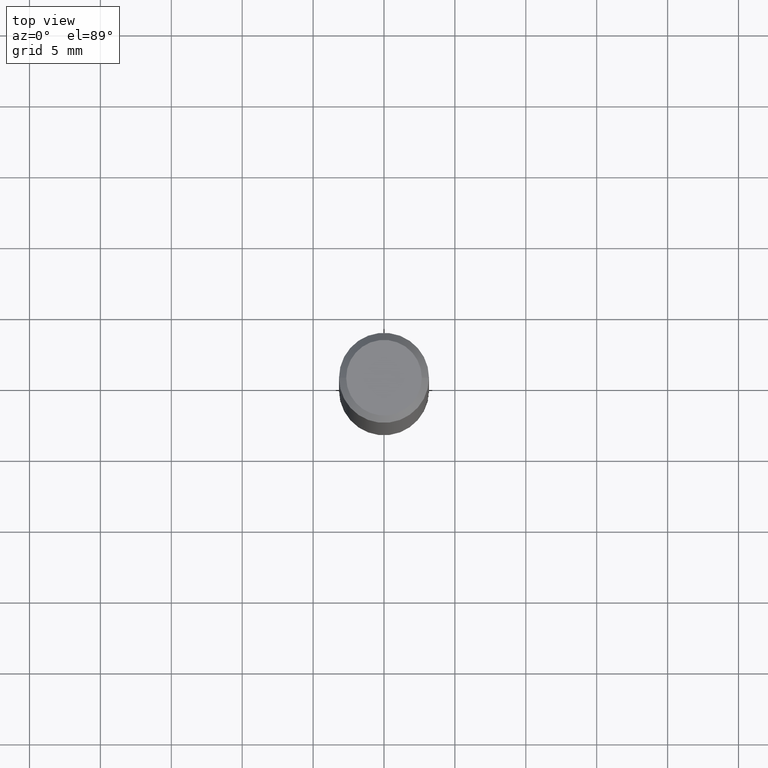
[diagram: clean part render]
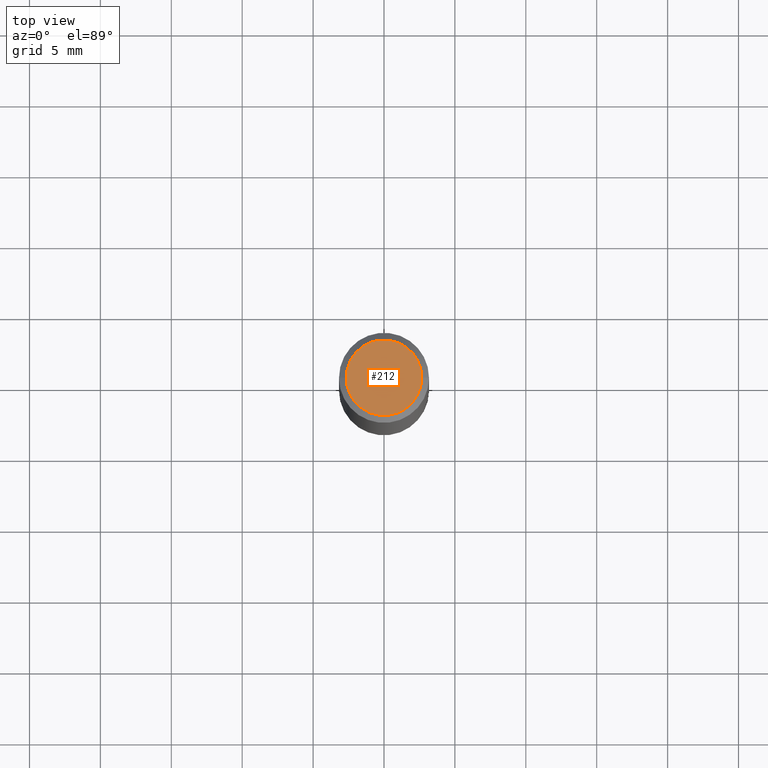
[diagram: same view with one face highlighted and labeled with its STEP entity id]
A machine part, top view. The second image highlights one B-rep face of the part: STEP entity #212.
In plain terms, the highlighted planar face has unit normal (0, -0, -1).
Its self-contained STEP definition (entity closure, byte-faithful):
#3 = FACE_OUTER_BOUND ( 'NONE', #270, .T. ) ;
#10 = EDGE_CURVE ( 'NONE', #138, #364, #342, .T. ) ;
#30 = CIRCLE ( 'NONE', #354, 0.1049999999999997741 ) ;
#55 = CARTESIAN_POINT ( 'NONE',  ( 0.1049999999999997741, -8.238720831321559881E-16, 5.444276250344138855E-30 ) ) ;
#70 = DIRECTION ( 'NONE',  ( -2.445468806185136597E-29, 3.491481338843145583E-15, 1.000000000000000000 ) ) ;
#79 = DIRECTION ( 'NONE',  ( -2.445468806185136597E-29, 3.491481338843145583E-15, 1.000000000000000000 ) ) ;
#96 = DIRECTION ( 'NONE',  ( 1.000000000000000000, -6.982962677686265922E-15, 4.876176775795935232E-29 ) ) ;
#110 = PLANE ( 'NONE',  #305 ) ;
#138 = VERTEX_POINT ( 'NONE', #241 ) ;
#161 = DIRECTION ( 'NONE',  ( 2.438088387897960049E-29, -3.491481338843145188E-15, -1.000000000000000000 ) ) ;
#181 = EDGE_CURVE ( 'NONE', #364, #138, #30, .T. ) ;
#191 = CARTESIAN_POINT ( 'NONE',  ( 7.332110811570563480E-16, 0.1049999999999997741, -3.666055405785295052E-16 ) ) ;
#212 = ADVANCED_FACE ( 'NONE', ( #3 ), #110, .F. ) ;
#223 = DIRECTION ( 'NONE',  ( -1.000000000000000000, 6.982962677686265922E-15, -4.876176775795935793E-29 ) ) ;
#241 = CARTESIAN_POINT ( 'NONE',  ( -0.1049999999999997741, 7.681258945454876027E-16, -5.249639473182155366E-30 ) ) ;
#248 = ORIENTED_EDGE ( 'NONE', *, *, #10, .T. ) ;
#253 = CARTESIAN_POINT ( 'NONE',  ( 0.000000000000000000, 0.000000000000000000, 0.000000000000000000 ) ) ;
#257 = ORIENTED_EDGE ( 'NONE', *, *, #181, .T. ) ;
#270 = EDGE_LOOP ( 'NONE', ( #248, #257 ) ) ;
#286 = AXIS2_PLACEMENT_3D ( 'NONE', #310, #70, #96 ) ;
#305 = AXIS2_PLACEMENT_3D ( 'NONE', #191, #161, #223 ) ;
#310 = CARTESIAN_POINT ( 'NONE',  ( 0.000000000000000000, 0.000000000000000000, 0.000000000000000000 ) ) ;
#342 = CIRCLE ( 'NONE', #286, 0.1049999999999997741 ) ;
#353 = DIRECTION ( 'NONE',  ( 1.000000000000000000, -6.982962677686265922E-15, 4.876176775795935232E-29 ) ) ;
#354 = AXIS2_PLACEMENT_3D ( 'NONE', #253, #79, #353 ) ;
#364 = VERTEX_POINT ( 'NONE', #55 ) ;